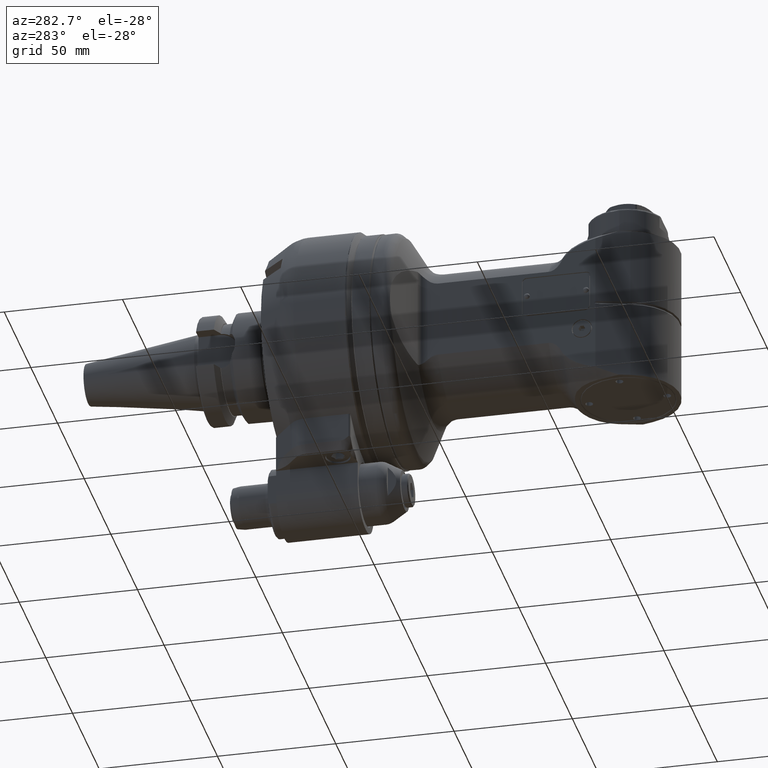
[diagram: clean part render]
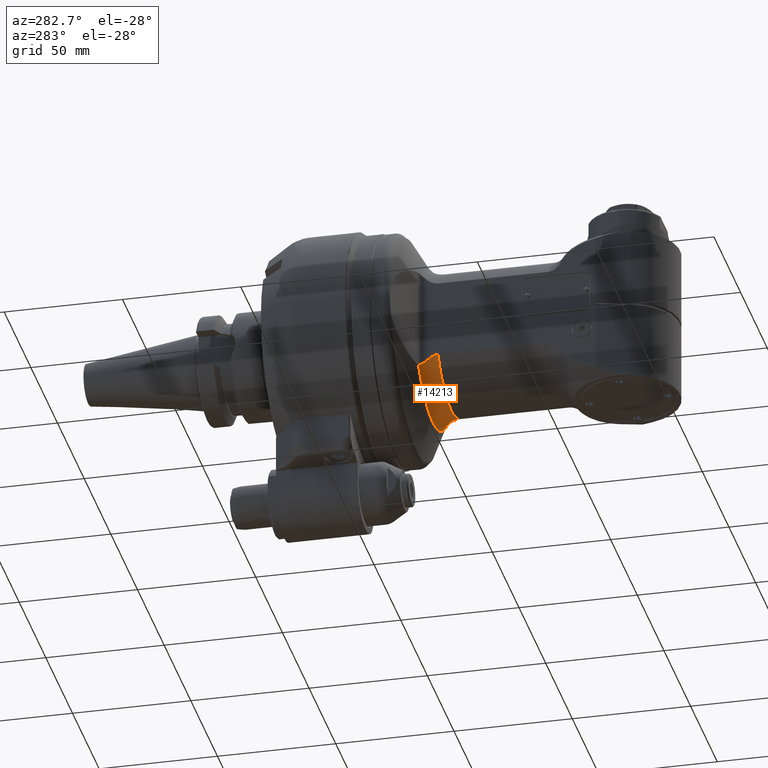
[diagram: same view with one face highlighted and labeled with its STEP entity id]
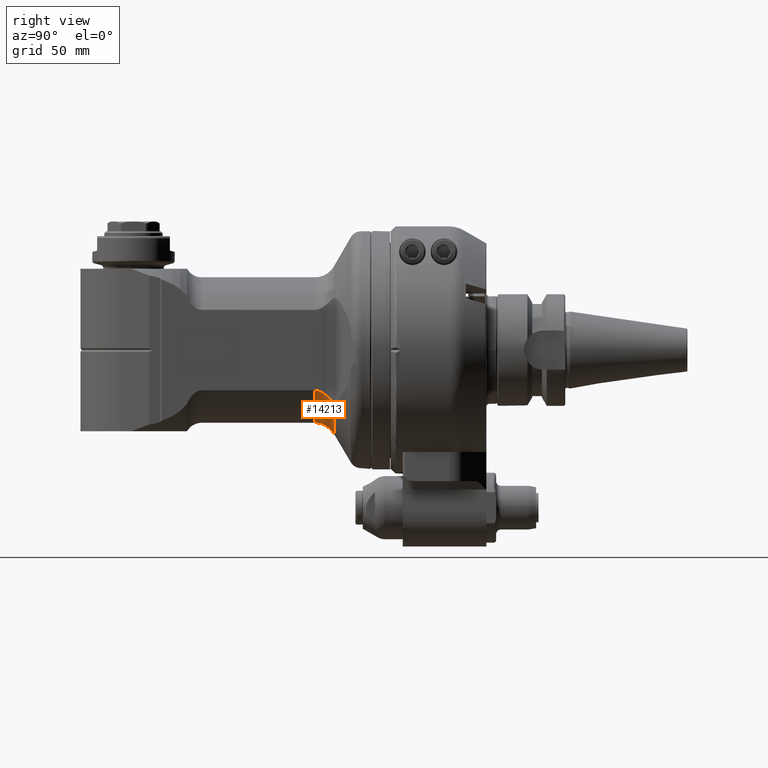
[diagram: same view with one face highlighted and labeled with its STEP entity id]
A machine part, auxiliary view. The second image highlights one B-rep face of the part: STEP entity #14213.
A second angle (right view) of the same face is appended — the face is thin or edge-on in the first view.
In plain terms, the highlighted toroidal blend (fillet) surface has major radius 39 mm and minor (blend) radius 9 mm.
Its self-contained STEP definition (entity closure, byte-faithful):
#184=TOROIDAL_SURFACE('',#15924,39.,9.);
#644=B_SPLINE_CURVE_WITH_KNOTS('',3,(#54480,#54481,#54482,#54483,#54484,
#54485,#54486,#54487),.UNSPECIFIED.,.F.,.F.,(4,2,2,4),(3.1423743118532,
3.27591971172755,3.42534326197877,3.60467441942828),.UNSPECIFIED.);
#647=B_SPLINE_CURVE_WITH_KNOTS('',3,(#54528,#54529,#54530,#54531,#54532,
#54533,#54534,#54535,#54536,#54537),.UNSPECIFIED.,.F.,.F.,(4,2,2,2,4),(-3.9868336364638,
-3.89042704673215,-3.73684578082548,-3.626598651154,-3.59658856200368),
 .UNSPECIFIED.);
#652=B_SPLINE_CURVE_WITH_KNOTS('',3,(#54591,#54592,#54593,#54594,#54595,
#54596,#54597,#54598,#54599,#54600),.UNSPECIFIED.,.F.,.F.,(4,2,2,2,4),(6.12835446149181,
6.27608158426437,6.47340065522146,6.58447781945239,6.5938588426084),
 .UNSPECIFIED.);
#655=B_SPLINE_CURVE_WITH_KNOTS('',3,(#55129,#55130,#55131,#55132,#55133,
#55134,#55135,#55136),.UNSPECIFIED.,.F.,.F.,(4,2,2,4),(-3.60614092364355,
-3.45529071298742,-3.28861382158355,-3.1423743118532),.UNSPECIFIED.);
#1995=FACE_OUTER_BOUND('',#3022,.T.);
#3022=EDGE_LOOP('',(#12683,#12684,#12685,#12686,#12687,#12688));
#3821=CIRCLE('',#15728,34.5);
#3919=CIRCLE('',#15925,30.);
#6791=VERTEX_POINT('',#54406);
#6803=VERTEX_POINT('',#54478);
#6815=VERTEX_POINT('',#54527);
#6823=VERTEX_POINT('',#54581);
#6824=VERTEX_POINT('',#54590);
#6976=VERTEX_POINT('',#55127);
#8678=EDGE_CURVE('',#6803,#6791,#644,.T.);
#8690=EDGE_CURVE('',#6791,#6815,#647,.T.);
#8702=EDGE_CURVE('',#6824,#6823,#652,.T.);
#8708=EDGE_CURVE('',#6815,#6823,#3821,.T.);
#8923=EDGE_CURVE('',#6803,#6976,#3919,.T.);
#8924=EDGE_CURVE('',#6824,#6976,#655,.T.);
#12683=ORIENTED_EDGE('',*,*,#8923,.T.);
#12684=ORIENTED_EDGE('',*,*,#8924,.F.);
#12685=ORIENTED_EDGE('',*,*,#8702,.T.);
#12686=ORIENTED_EDGE('',*,*,#8708,.F.);
#12687=ORIENTED_EDGE('',*,*,#8690,.F.);
#12688=ORIENTED_EDGE('',*,*,#8678,.F.);
#14213=ADVANCED_FACE('',(#1995),#184,.F.);
#15728=AXIS2_PLACEMENT_3D('',#54628,#19448,#19449);
#15924=AXIS2_PLACEMENT_3D('',#55126,#19939,#19940);
#15925=AXIS2_PLACEMENT_3D('',#55128,#19941,#19942);
#19448=DIRECTION('center_axis',(-1.,0.,0.));
#19449=DIRECTION('ref_axis',(0.,0.624664511069717,0.780893237651621));
#19939=DIRECTION('center_axis',(-1.,0.,0.));
#19940=DIRECTION('ref_axis',(0.,1.,0.));
#19941=DIRECTION('center_axis',(-1.,0.,0.));
#19942=DIRECTION('ref_axis',(0.,0.552770798392605,0.833333333333308));
#54406=CARTESIAN_POINT('',(30.8008301975,18.54823604133,25.));
#54478=CARTESIAN_POINT('',(35.16580758197,16.58312395178,25.));
#54480=CARTESIAN_POINT('Ctrl Pts',(35.16580758197,16.583123951777,25.));
#54481=CARTESIAN_POINT('Ctrl Pts',(34.7206562490555,16.583123951777,25.));
#54482=CARTESIAN_POINT('Ctrl Pts',(34.1920196550243,16.6598919965139,25.));
#54483=CARTESIAN_POINT('Ctrl Pts',(33.2844305992261,16.9167277905047,25.));
#54484=CARTESIAN_POINT('Ctrl Pts',(32.7382766269785,17.1595326432425,25.));
#54485=CARTESIAN_POINT('Ctrl Pts',(31.7927287077858,17.713449802726,25.));
#54486=CARTESIAN_POINT('Ctrl Pts',(31.2768824719658,18.1051437659629,25.));
#54487=CARTESIAN_POINT('Ctrl Pts',(30.8008301975013,18.5482360413314,25.));
#54527=CARTESIAN_POINT('',(27.37157894791,21.55092563191,26.94081669898));
#54528=CARTESIAN_POINT('Ctrl Pts',(30.8008301975013,18.5482360413314,25.));
#54529=CARTESIAN_POINT('Ctrl Pts',(30.4392827282407,18.8847513767296,24.9999999999999));
#54530=CARTESIAN_POINT('Ctrl Pts',(30.0745482205948,19.207422456481,25.0489408115964));
#54531=CARTESIAN_POINT('Ctrl Pts',(29.146148630939,20.0224758800897,25.310399910167));
#54532=CARTESIAN_POINT('Ctrl Pts',(28.6466925231098,20.4603252622379,25.5894490369276));
#54533=CARTESIAN_POINT('Ctrl Pts',(27.957239957263,21.0717129154018,26.1620004341281));
#54534=CARTESIAN_POINT('Ctrl Pts',(27.7169404273542,21.2852548148026,26.4305321262483));
#54535=CARTESIAN_POINT('Ctrl Pts',(27.4721031814979,21.4782962654301,26.780109144326));
#54536=CARTESIAN_POINT('Ctrl Pts',(27.4208401335489,21.5168900372257,26.8587798145909));
#54537=CARTESIAN_POINT('Ctrl Pts',(27.3715789479101,21.5509256319022,26.9408166989833));
#54581=CARTESIAN_POINT('',(27.37157894782,21.55092563201,-26.9408166991));
#54590=CARTESIAN_POINT('',(30.8008301975,18.54823604133,-25.));
#54591=CARTESIAN_POINT('Ctrl Pts',(30.8008301975013,18.5482360413314,-25.));
#54592=CARTESIAN_POINT('Ctrl Pts',(30.3182108620918,18.9974407000089,-24.9999999999998));
#54593=CARTESIAN_POINT('Ctrl Pts',(29.8381138707204,19.4155756278412,-25.0874310034958));
#54594=CARTESIAN_POINT('Ctrl Pts',(28.7791301612323,20.3425970007356,-25.4883017427968));
#54595=CARTESIAN_POINT('Ctrl Pts',(28.2887044363587,20.7807655001039,-25.8431255043232));
#54596=CARTESIAN_POINT('Ctrl Pts',(27.7176933102887,21.2805222853818,-26.4344728475636));
#54597=CARTESIAN_POINT('Ctrl Pts',(27.5472100386126,21.4250404392724,-26.6581350807559));
#54598=CARTESIAN_POINT('Ctrl Pts',(27.3949674920719,21.5345874428704,-26.9022390043028));
#54599=CARTESIAN_POINT('Ctrl Pts',(27.3832154279546,21.5428857418127,-26.9214379415325));
#54600=CARTESIAN_POINT('Ctrl Pts',(27.3715789478256,21.5509256319605,-26.9408166991239));
#54628=CARTESIAN_POINT('Origin',(27.37157894791,0.,0.));
#55126=CARTESIAN_POINT('Origin',(35.16580758197,0.,0.));
#55127=CARTESIAN_POINT('',(35.16580758197,16.58312395178,-25.));
#55128=CARTESIAN_POINT('Origin',(35.16580758197,0.,0.));
#55129=CARTESIAN_POINT('Ctrl Pts',(30.8008301975013,18.5482360413314,-25.));
#55130=CARTESIAN_POINT('Ctrl Pts',(31.1971517302138,18.1793542627398,-25.));
#55131=CARTESIAN_POINT('Ctrl Pts',(31.6156570788555,17.8497919087216,-25.));
#55132=CARTESIAN_POINT('Ctrl Pts',(32.5053865073531,17.2765186608186,-25.));
#55133=CARTESIAN_POINT('Ctrl Pts',(33.1041781244662,16.9833504883921,-25.));
#55134=CARTESIAN_POINT('Ctrl Pts',(34.1006782151417,16.675209911989,-25.));
#55135=CARTESIAN_POINT('Ctrl Pts',(34.6783425495355,16.583123951777,-25.));
#55136=CARTESIAN_POINT('Ctrl Pts',(35.16580758197,16.583123951777,-25.));